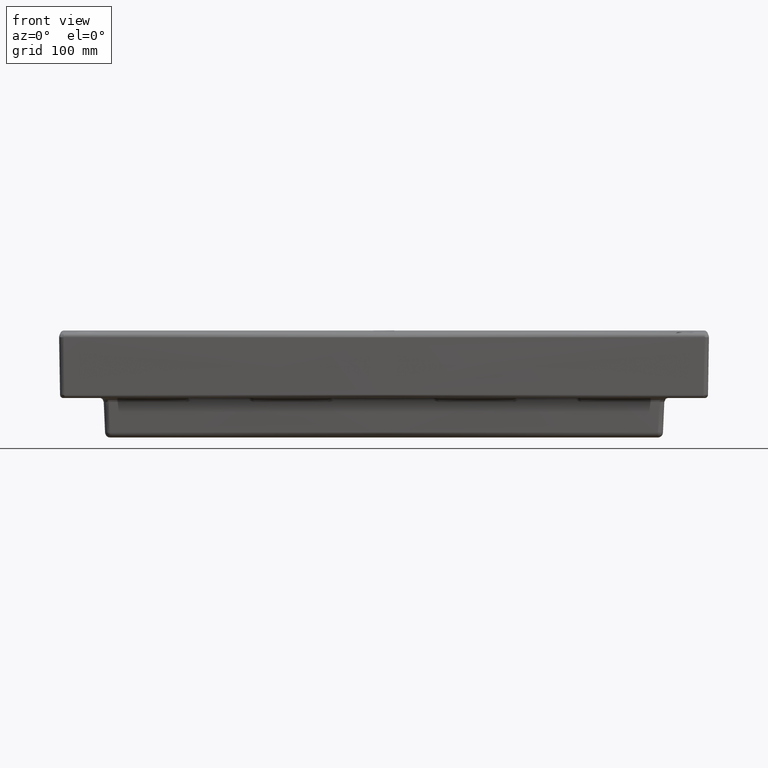
[diagram: clean part render]
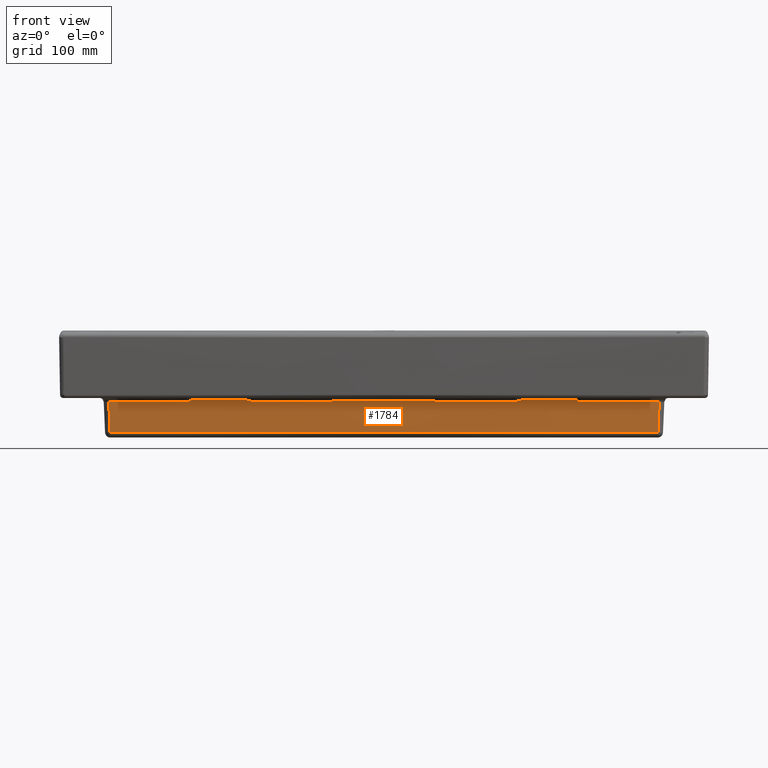
[diagram: same view with one face highlighted and labeled with its STEP entity id]
A machine part, front view. The second image highlights one B-rep face of the part: STEP entity #1784.
In plain terms, the highlighted face is a freeform B-spline surface patch.
Its self-contained STEP definition (entity closure, byte-faithful):
#741=B_SPLINE_SURFACE_WITH_KNOTS('',3,3,((#28799,#28800,#28801,#28802),
(#28803,#28804,#28805,#28806),(#28807,#28808,#28809,#28810),(#28811,#28812,
#28813,#28814)),.UNSPECIFIED.,.F.,.F.,.F.,(4,4),(4,4),(0.,1.),(0.,1.),
 .UNSPECIFIED.);
#817=FACE_OUTER_BOUND('',#2609,.T.);
#1334=B_SPLINE_CURVE_WITH_KNOTS('',3,(#28588,#28589,#28590,#28591,#28592,
#28593,#28594,#28595),.UNSPECIFIED.,.F.,.F.,(4,2,2,4),(0.,0.25,0.499999999999999,
1.),.UNSPECIFIED.);
#1335=B_SPLINE_CURVE_WITH_KNOTS('',3,(#28598,#28599,#28600,#28601,#28602,
#28603,#28604,#28605,#28606,#28607),.UNSPECIFIED.,.F.,.F.,(4,3,3,4),(0.,
0.117651243778816,0.58825746780924,1.),.UNSPECIFIED.);
#1336=B_SPLINE_CURVE_WITH_KNOTS('',3,(#28609,#28610,#28611,#28612,#28613,
#28614,#28615,#28616,#28617,#28618),.UNSPECIFIED.,.F.,.F.,(4,3,3,4),(0.,
0.19676708628781,0.535640576906987,1.),.UNSPECIFIED.);
#1337=B_SPLINE_CURVE_WITH_KNOTS('',3,(#28620,#28621,#28622,#28623),
 .UNSPECIFIED.,.F.,.F.,(4,4),(0.,1.),.UNSPECIFIED.);
#1338=B_SPLINE_CURVE_WITH_KNOTS('',3,(#28625,#28626,#28627,#28628,#28629,
#28630,#28631,#28632,#28633,#28634),.UNSPECIFIED.,.F.,.F.,(4,3,3,4),(0.,
0.176450270213736,0.515323760833533,1.),.UNSPECIFIED.);
#1339=B_SPLINE_CURVE_WITH_KNOTS('',3,(#28636,#28637,#28638,#28639,#28640,
#28641,#28642,#28643,#28644,#28645),.UNSPECIFIED.,.F.,.F.,(4,3,3,4),(0.,
0.117651243772488,0.58825746794212,1.),.UNSPECIFIED.);
#1340=B_SPLINE_CURVE_WITH_KNOTS('',3,(#28647,#28648,#28649,#28650,#28651,
#28652,#28653,#28654),.UNSPECIFIED.,.F.,.F.,(4,2,2,4),(0.,0.5,0.75,1.),
 .UNSPECIFIED.);
#1341=B_SPLINE_CURVE_WITH_KNOTS('',3,(#28656,#28657,#28658,#28659,#28660,
#28661),.UNSPECIFIED.,.F.,.F.,(4,2,4),(0.,0.5,1.),.UNSPECIFIED.);
#1342=B_SPLINE_CURVE_WITH_KNOTS('',3,(#28663,#28664,#28665,#28666,#28667,
#28668,#28669),.UNSPECIFIED.,.F.,.F.,(4,3,4),(0.,0.246708450632507,1.),
 .UNSPECIFIED.);
#1343=B_SPLINE_CURVE_WITH_KNOTS('',3,(#28671,#28672,#28673,#28674),
 .UNSPECIFIED.,.F.,.F.,(4,4),(0.,1.),.UNSPECIFIED.);
#1344=B_SPLINE_CURVE_WITH_KNOTS('',3,(#28676,#28677,#28678,#28679,#28680,
#28681,#28682,#28683),.UNSPECIFIED.,.F.,.F.,(4,2,2,4),(0.,0.250000000000002,
0.500000000000004,1.),.UNSPECIFIED.);
#1345=B_SPLINE_CURVE_WITH_KNOTS('',3,(#28685,#28686,#28687,#28688,#28689,
#28690,#28691,#28692,#28693,#28694),.UNSPECIFIED.,.F.,.F.,(4,3,3,4),(0.,
0.123832084792483,0.619161738071717,1.),.UNSPECIFIED.);
#1346=B_SPLINE_CURVE_WITH_KNOTS('',3,(#28696,#28697,#28698,#28699,#28700,
#28701,#28702,#28703),.UNSPECIFIED.,.F.,.F.,(4,2,2,4),(0.,0.5,0.75,1.),
 .UNSPECIFIED.);
#1347=B_SPLINE_CURVE_WITH_KNOTS('',3,(#28705,#28706,#28707,#28708),
 .UNSPECIFIED.,.F.,.F.,(4,4),(0.,1.),.UNSPECIFIED.);
#1348=B_SPLINE_CURVE_WITH_KNOTS('',3,(#28710,#28711,#28712,#28713,#28714,
#28715,#28716),.UNSPECIFIED.,.F.,.F.,(4,3,4),(0.,0.529617607773983,1.),
 .UNSPECIFIED.);
#1349=B_SPLINE_CURVE_WITH_KNOTS('',3,(#28718,#28719,#28720,#28721,#28722,
#28723,#28724),.UNSPECIFIED.,.F.,.F.,(4,3,4),(0.,0.640132789636948,1.),
 .UNSPECIFIED.);
#1350=B_SPLINE_CURVE_WITH_KNOTS('',3,(#28726,#28727,#28728,#28729,#28730,
#28731,#28732),.UNSPECIFIED.,.F.,.F.,(4,3,4),(0.,0.359679566338201,1.),
 .UNSPECIFIED.);
#1351=B_SPLINE_CURVE_WITH_KNOTS('',3,(#28734,#28735,#28736,#28737,#28738,
#28739,#28740),.UNSPECIFIED.,.F.,.F.,(4,3,4),(0.,0.529617610388831,1.),
 .UNSPECIFIED.);
#1352=B_SPLINE_CURVE_WITH_KNOTS('',3,(#28742,#28743,#28744,#28745),
 .UNSPECIFIED.,.F.,.F.,(4,4),(0.,1.),.UNSPECIFIED.);
#1353=B_SPLINE_CURVE_WITH_KNOTS('',3,(#28747,#28748,#28749,#28750,#28751,
#28752,#28753,#28754),.UNSPECIFIED.,.F.,.F.,(4,2,2,4),(0.,0.249999999999999,
0.499999999999998,1.),.UNSPECIFIED.);
#1354=B_SPLINE_CURVE_WITH_KNOTS('',3,(#28756,#28757,#28758,#28759,#28760,
#28761,#28762,#28763,#28764,#28765),.UNSPECIFIED.,.F.,.F.,(4,3,3,4),(0.,
0.12383208479835,0.619161738041473,1.),.UNSPECIFIED.);
#1355=B_SPLINE_CURVE_WITH_KNOTS('',3,(#28767,#28768,#28769,#28770,#28771,
#28772,#28773,#28774),.UNSPECIFIED.,.F.,.F.,(4,2,2,4),(0.,0.500000000000004,
0.750000000000002,1.),.UNSPECIFIED.);
#1356=B_SPLINE_CURVE_WITH_KNOTS('',3,(#28776,#28777,#28778,#28779,#28780,
#28781,#28782),.UNSPECIFIED.,.F.,.F.,(4,3,4),(0.,0.840031151232951,1.),
 .UNSPECIFIED.);
#1357=B_SPLINE_CURVE_WITH_KNOTS('',3,(#28784,#28785,#28786,#28787,#28788,
#28789,#28790),.UNSPECIFIED.,.F.,.F.,(4,3,4),(0.,0.256019087209822,1.),
 .UNSPECIFIED.);
#1358=B_SPLINE_CURVE_WITH_KNOTS('',3,(#28792,#28793,#28794,#28795,#28796,
#28797,#28798),.UNSPECIFIED.,.F.,.F.,(4,3,4),(0.,0.669983905232446,1.),
 .UNSPECIFIED.);
#1784=ADVANCED_FACE('',(#817),#741,.F.);
#2609=EDGE_LOOP('',(#3285,#3286,#3287,#3288,#3289,#3290,#3291,#3292,#3293,
#3294,#3295,#3296,#3297,#3298,#3299,#3300,#3301,#3302,#3303,#3304,#3305,
#3306,#3307,#3308,#3309));
#3285=ORIENTED_EDGE('',*,*,#5853,.T.);
#3286=ORIENTED_EDGE('',*,*,#5854,.T.);
#3287=ORIENTED_EDGE('',*,*,#5855,.T.);
#3288=ORIENTED_EDGE('',*,*,#5856,.T.);
#3289=ORIENTED_EDGE('',*,*,#5857,.T.);
#3290=ORIENTED_EDGE('',*,*,#5858,.T.);
#3291=ORIENTED_EDGE('',*,*,#5859,.T.);
#3292=ORIENTED_EDGE('',*,*,#5860,.T.);
#3293=ORIENTED_EDGE('',*,*,#5861,.T.);
#3294=ORIENTED_EDGE('',*,*,#5862,.T.);
#3295=ORIENTED_EDGE('',*,*,#5863,.T.);
#3296=ORIENTED_EDGE('',*,*,#5864,.T.);
#3297=ORIENTED_EDGE('',*,*,#5865,.T.);
#3298=ORIENTED_EDGE('',*,*,#5866,.T.);
#3299=ORIENTED_EDGE('',*,*,#5867,.T.);
#3300=ORIENTED_EDGE('',*,*,#5868,.T.);
#3301=ORIENTED_EDGE('',*,*,#5869,.T.);
#3302=ORIENTED_EDGE('',*,*,#5870,.T.);
#3303=ORIENTED_EDGE('',*,*,#5871,.T.);
#3304=ORIENTED_EDGE('',*,*,#5872,.T.);
#3305=ORIENTED_EDGE('',*,*,#5873,.T.);
#3306=ORIENTED_EDGE('',*,*,#5874,.T.);
#3307=ORIENTED_EDGE('',*,*,#5875,.T.);
#3308=ORIENTED_EDGE('',*,*,#5876,.T.);
#3309=ORIENTED_EDGE('',*,*,#5877,.T.);
#5239=VERTEX_POINT('',#28596);
#5240=VERTEX_POINT('',#28597);
#5241=VERTEX_POINT('',#28608);
#5242=VERTEX_POINT('',#28619);
#5243=VERTEX_POINT('',#28624);
#5244=VERTEX_POINT('',#28635);
#5245=VERTEX_POINT('',#28646);
#5246=VERTEX_POINT('',#28655);
#5247=VERTEX_POINT('',#28662);
#5248=VERTEX_POINT('',#28670);
#5249=VERTEX_POINT('',#28675);
#5250=VERTEX_POINT('',#28684);
#5251=VERTEX_POINT('',#28695);
#5252=VERTEX_POINT('',#28704);
#5253=VERTEX_POINT('',#28709);
#5254=VERTEX_POINT('',#28717);
#5255=VERTEX_POINT('',#28725);
#5256=VERTEX_POINT('',#28733);
#5257=VERTEX_POINT('',#28741);
#5258=VERTEX_POINT('',#28746);
#5259=VERTEX_POINT('',#28755);
#5260=VERTEX_POINT('',#28766);
#5261=VERTEX_POINT('',#28775);
#5262=VERTEX_POINT('',#28783);
#5263=VERTEX_POINT('',#28791);
#5853=EDGE_CURVE('',#5239,#5240,#1334,.T.);
#5854=EDGE_CURVE('',#5240,#5241,#1335,.T.);
#5855=EDGE_CURVE('',#5241,#5242,#1336,.T.);
#5856=EDGE_CURVE('',#5242,#5243,#1337,.T.);
#5857=EDGE_CURVE('',#5243,#5244,#1338,.T.);
#5858=EDGE_CURVE('',#5244,#5245,#1339,.T.);
#5859=EDGE_CURVE('',#5245,#5246,#1340,.T.);
#5860=EDGE_CURVE('',#5246,#5247,#1341,.T.);
#5861=EDGE_CURVE('',#5247,#5248,#1342,.T.);
#5862=EDGE_CURVE('',#5248,#5249,#1343,.T.);
#5863=EDGE_CURVE('',#5249,#5250,#1344,.T.);
#5864=EDGE_CURVE('',#5250,#5251,#1345,.T.);
#5865=EDGE_CURVE('',#5251,#5252,#1346,.T.);
#5866=EDGE_CURVE('',#5252,#5253,#1347,.T.);
#5867=EDGE_CURVE('',#5253,#5254,#1348,.T.);
#5868=EDGE_CURVE('',#5254,#5255,#1349,.T.);
#5869=EDGE_CURVE('',#5255,#5256,#1350,.T.);
#5870=EDGE_CURVE('',#5256,#5257,#1351,.T.);
#5871=EDGE_CURVE('',#5257,#5258,#1352,.T.);
#5872=EDGE_CURVE('',#5258,#5259,#1353,.T.);
#5873=EDGE_CURVE('',#5259,#5260,#1354,.T.);
#5874=EDGE_CURVE('',#5260,#5261,#1355,.T.);
#5875=EDGE_CURVE('',#5261,#5262,#1356,.T.);
#5876=EDGE_CURVE('',#5262,#5263,#1357,.T.);
#5877=EDGE_CURVE('',#5263,#5239,#1358,.T.);
#28588=CARTESIAN_POINT('',(-296.672856721617,-429.613503322951,-119.061244166966));
#28589=CARTESIAN_POINT('',(-297.390163376989,-429.580100555399,-119.456104124796));
#28590=CARTESIAN_POINT('',(-298.054761526986,-429.543189136452,-119.935419290818));
#28591=CARTESIAN_POINT('',(-299.453465356129,-429.473883993891,-120.78205812513));
#28592=CARTESIAN_POINT('',(-300.173576327274,-429.441021568146,-121.163120406945));
#28593=CARTESIAN_POINT('',(-302.433120835536,-429.351029214019,-122.104355645544));
#28594=CARTESIAN_POINT('',(-304.028863219171,-429.303917669622,-122.450057652582));
#28595=CARTESIAN_POINT('',(-305.669884368878,-429.273776970956,-122.449815518672));
#28596=CARTESIAN_POINT('',(-296.672856721617,-429.613503322951,-119.061244166966));
#28597=CARTESIAN_POINT('',(-305.669884368878,-429.273776970956,-122.449815518672));
#28598=CARTESIAN_POINT('',(-305.669884368878,-429.273776970956,-122.449815518672));
#28599=CARTESIAN_POINT('',(-310.335764451016,-429.188078571766,-122.449127064542));
#28600=CARTESIAN_POINT('',(-315.001608899582,-429.100417737833,-122.448422845636));
#28601=CARTESIAN_POINT('',(-319.667415237679,-429.010794484833,-122.447702862128));
#28602=CARTESIAN_POINT('',(-338.330665354764,-428.652300997143,-122.444822924275));
#28603=CARTESIAN_POINT('',(-356.993338722978,-428.262408031016,-122.441690746548));
#28604=CARTESIAN_POINT('',(-375.655276804809,-427.841116702662,-122.438306341453));
#28605=CARTESIAN_POINT('',(-391.98297456758,-427.472520608876,-122.435345258673));
#28606=CARTESIAN_POINT('',(-408.310147392865,-427.079888709386,-122.432191092965));
#28607=CARTESIAN_POINT('',(-424.636689084784,-426.66322186548,-122.428843853973));
#28608=CARTESIAN_POINT('',(-424.636689084784,-426.66322186548,-122.428843853973));
#28609=CARTESIAN_POINT('',(-424.636689084784,-426.66322186548,-122.428843853973));
#28610=CARTESIAN_POINT('',(-424.50156145699,-426.506131972323,-125.518706704717));
#28611=CARTESIAN_POINT('',(-424.366433800523,-426.349040019635,-128.608569449501));
#28612=CARTESIAN_POINT('',(-424.231306117439,-426.191945953044,-131.698432085646));
#28613=CARTESIAN_POINT('',(-423.998588387507,-425.921397581842,-137.019812590882));
#28614=CARTESIAN_POINT('',(-423.765870578622,-425.650842940811,-142.341192773899));
#28615=CARTESIAN_POINT('',(-423.533152701327,-425.380281752271,-147.662572621019));
#28616=CARTESIAN_POINT('',(-423.214258653149,-425.009530894209,-154.954476367599));
#28617=CARTESIAN_POINT('',(-422.895364476504,-424.638767741679,-162.24637948347));
#28618=CARTESIAN_POINT('',(-422.576470198717,-424.267991580399,-169.538281933444));
#28619=CARTESIAN_POINT('',(-422.576470198717,-424.267991580399,-169.538281933444));
#28620=CARTESIAN_POINT('',(-422.576470198717,-424.267991580399,-169.538281933444));
#28621=CARTESIAN_POINT('',(-140.914549940891,-431.392558969336,-169.605422258055));
#28622=CARTESIAN_POINT('',(140.914529720339,-431.392558962638,-169.605422239955));
#28623=CARTESIAN_POINT('',(422.576450478011,-424.267991579878,-169.538281932917));
#28624=CARTESIAN_POINT('',(422.57645047801,-424.267991579878,-169.538281932916));
#28625=CARTESIAN_POINT('',(422.57645047801,-424.267991579878,-169.538281932916));
#28626=CARTESIAN_POINT('',(422.697625969682,-424.408881482214,-166.767458097562));
#28627=CARTESIAN_POINT('',(422.818801446784,-424.549769506254,-163.996634166062));
#28628=CARTESIAN_POINT('',(422.939976907813,-424.690655691184,-161.225810140348));
#28629=CARTESIAN_POINT('',(423.172694893489,-424.961228205521,-155.904430873831));
#28630=CARTESIAN_POINT('',(423.405412819879,-425.231793936597,-150.583051259814));
#28631=CARTESIAN_POINT('',(423.638130676382,-425.502353162032,-145.261671311973));
#28632=CARTESIAN_POINT('',(423.970977058879,-425.889322433708,-137.650729495384));
#28633=CARTESIAN_POINT('',(424.303823298406,-426.276278397205,-130.039786995894));
#28634=CARTESIAN_POINT('',(424.636669364182,-426.663221865023,-122.428843853532));
#28635=CARTESIAN_POINT('',(424.636669364182,-426.663221865023,-122.428843853532));
#28636=CARTESIAN_POINT('',(424.636669364182,-426.663221865023,-122.428843853532));
#28637=CARTESIAN_POINT('',(419.971521370162,-426.782280299026,-122.429800293738));
#28638=CARTESIAN_POINT('',(415.30632287743,-426.899376318208,-122.430740969835));
#28639=CARTESIAN_POINT('',(410.641076363674,-427.014509901588,-122.431665881588));
#28640=CARTESIAN_POINT('',(391.980065543686,-427.475044846283,-122.435365533507));
#28641=CARTESIAN_POINT('',(373.318253365956,-427.904181493897,-122.438812961297));
#28642=CARTESIAN_POINT('',(354.655798384908,-428.301918615078,-122.442008151153));
#28643=CARTESIAN_POINT('',(338.327648383436,-428.649906668224,-122.444803685787));
#28644=CARTESIAN_POINT('',(321.998968413223,-428.973859688429,-122.447406142771));
#28645=CARTESIAN_POINT('',(305.669864647483,-429.273776965962,-122.449815514129));
#28646=CARTESIAN_POINT('',(305.669864647483,-429.273776965962,-122.449815514129));
#28647=CARTESIAN_POINT('',(305.669864647483,-429.273776965962,-122.449815514129));
#28648=CARTESIAN_POINT('',(304.035077006512,-429.303803173503,-122.450056728257));
#28649=CARTESIAN_POINT('',(302.445521823821,-429.350657969578,-122.107134600862));
#28650=CARTESIAN_POINT('',(300.193103591252,-429.440182382077,-121.172439968415));
#28651=CARTESIAN_POINT('',(299.475142998335,-429.47286925525,-120.794015979646));
#28652=CARTESIAN_POINT('',(298.080876903318,-429.541835822415,-119.952374963623));
#28653=CARTESIAN_POINT('',(297.417933100868,-429.578560362099,-119.476090921735));
#28654=CARTESIAN_POINT('',(296.705484526785,-429.611977475313,-119.079321581975));
#28655=CARTESIAN_POINT('',(296.705484526785,-429.611977475313,-119.079321581975));
#28656=CARTESIAN_POINT('',(296.705484526785,-429.611977475313,-119.079321581974));
#28657=CARTESIAN_POINT('',(296.4904786207,-429.620122586057,-118.996749469803));
#28658=CARTESIAN_POINT('',(296.191561725284,-429.628657529033,-118.935278966264));
#28659=CARTESIAN_POINT('',(295.688501002126,-429.641021692102,-118.869896063755));
#28660=CARTESIAN_POINT('',(295.426995569535,-429.646460696073,-118.85473547138));
#28661=CARTESIAN_POINT('',(295.155519085159,-429.651155080604,-118.857105726192));
#28662=CARTESIAN_POINT('',(295.155519085159,-429.651155080604,-118.857105726192));
#28663=CARTESIAN_POINT('',(295.155519085971,-429.651155075277,-118.857105827977));
#28664=CARTESIAN_POINT('',(288.093176624121,-429.773225453204,-118.919763143811));
#28665=CARTESIAN_POINT('',(281.030731896931,-429.890943674694,-118.979575721314));
#28666=CARTESIAN_POINT('',(273.968198478708,-430.00429333932,-119.036862149482));
#28667=CARTESIAN_POINT('',(252.403732929009,-430.350390807914,-119.211778306836));
#28668=CARTESIAN_POINT('',(230.83837832768,-430.655741663417,-119.363518858931));
#28669=CARTESIAN_POINT('',(209.272455645447,-430.920131519285,-119.496298496216));
#28670=CARTESIAN_POINT('',(209.272455645447,-430.920131519285,-119.496298496216));
#28671=CARTESIAN_POINT('',(209.272455645447,-430.920131519285,-119.496298496216));
#28672=CARTESIAN_POINT('',(208.839891541647,-430.925434587591,-119.498961758329));
#28673=CARTESIAN_POINT('',(208.396313714095,-430.929273891219,-119.53191917238));
#28674=CARTESIAN_POINT('',(207.986333687755,-430.927180134085,-119.669973196508));
#28675=CARTESIAN_POINT('',(207.986333687755,-430.927180134084,-119.669973196508));
#28676=CARTESIAN_POINT('',(207.986333687755,-430.927180134085,-119.669973196508));
#28677=CARTESIAN_POINT('',(207.24385950368,-430.923388338095,-119.919989154205));
#28678=CARTESIAN_POINT('',(206.541066435765,-430.912388396959,-120.297419432439));
#28679=CARTESIAN_POINT('',(205.116977518729,-430.893635948379,-120.992866894654));
#28680=CARTESIAN_POINT('',(204.398908331473,-430.885300103526,-121.321244784395));
#28681=CARTESIAN_POINT('',(202.191484823098,-430.869734817306,-122.135501469253));
#28682=CARTESIAN_POINT('',(200.652697089159,-430.871267623732,-122.462648922119));
#28683=CARTESIAN_POINT('',(199.012075363175,-430.890883973881,-122.462806510189));
#28684=CARTESIAN_POINT('',(199.012075363175,-430.890883973881,-122.462806510189));
#28685=CARTESIAN_POINT('',(199.012075363175,-430.890883973881,-122.462806510189));
#28686=CARTESIAN_POINT('',(194.345741846734,-430.946677720068,-122.463254729594));
#28687=CARTESIAN_POINT('',(189.679384452031,-431.00050904307,-122.463687184015));
#28688=CARTESIAN_POINT('',(185.013005655333,-431.052377933275,-122.464103873343));
#28689=CARTESIAN_POINT('',(166.347465708696,-431.259853769312,-122.465770632869));
#28690=CARTESIAN_POINT('',(147.681550316325,-431.435930908571,-122.467185152708));
#28691=CARTESIAN_POINT('',(129.015417951986,-431.580608848161,-122.468347427194));
#28692=CARTESIAN_POINT('',(114.66380085805,-431.691845731647,-122.469241051971));
#28693=CARTESIAN_POINT('',(100.312027886207,-431.784521407477,-122.469985565369));
#28694=CARTESIAN_POINT('',(85.9601710597178,-431.858635719232,-122.470580965623));
#28695=CARTESIAN_POINT('',(85.9601710597178,-431.858635719232,-122.470580965623));
#28696=CARTESIAN_POINT('',(85.9601710597178,-431.858635719232,-122.470580965622));
#28697=CARTESIAN_POINT('',(84.2971984204014,-431.867223463252,-122.470649955604));
#28698=CARTESIAN_POINT('',(82.7005090368483,-431.892525364746,-122.14044270821));
#28699=CARTESIAN_POINT('',(80.3647462000549,-431.945340472426,-121.349788600733));
#28700=CARTESIAN_POINT('',(79.5981870697126,-431.965502381735,-121.035290075915));
#28701=CARTESIAN_POINT('',(78.05745527425,-432.003991206655,-120.440002249126));
#28702=CARTESIAN_POINT('',(77.2821188698262,-432.0224102045,-120.157600368926));
#28703=CARTESIAN_POINT('',(76.4445782618079,-432.031058954819,-120.065984795078));
#28704=CARTESIAN_POINT('',(76.4445782618079,-432.031058954819,-120.065984795078));
#28705=CARTESIAN_POINT('',(76.4445782618079,-432.031058954819,-120.065984795078));
#28706=CARTESIAN_POINT('',(76.2539480277645,-432.033027472263,-120.045132435064));
#28707=CARTESIAN_POINT('',(76.0618057959371,-432.034398087608,-120.035761670809));
#28708=CARTESIAN_POINT('',(75.8700308382338,-432.035247837159,-120.036236680447));
#28709=CARTESIAN_POINT('',(75.8700308382338,-432.035247837159,-120.036236680447));
#28710=CARTESIAN_POINT('',(75.8700308382338,-432.035247837159,-120.036236680447));
#28711=CARTESIAN_POINT('',(68.539870412453,-432.067727575937,-120.054392840624));
#28712=CARTESIAN_POINT('',(61.209681989726,-432.095471950837,-120.070455611619));
#28713=CARTESIAN_POINT('',(53.8794765357815,-432.118481258987,-120.084420638213));
#28714=CARTESIAN_POINT('',(47.3691194257465,-432.138917086312,-120.096823743522));
#28715=CARTESIAN_POINT('',(40.8587461561895,-432.155617816131,-120.107572030796));
#28716=CARTESIAN_POINT('',(34.3483644148492,-432.16858366238,-120.116662085693));
#28717=CARTESIAN_POINT('',(34.3483644148492,-432.16858366238,-120.116662085693));
#28718=CARTESIAN_POINT('',(34.3483644148492,-432.16858366238,-120.116662085693));
#28719=CARTESIAN_POINT('',(27.018131128686,-432.183182295998,-120.126896850048));
#28720=CARTESIAN_POINT('',(19.687883582177,-432.193048764795,-120.134979692243));
#28721=CARTESIAN_POINT('',(12.3576328474377,-432.1981806627,-120.14095711303));
#28722=CARTESIAN_POINT('',(8.23674202888767,-432.201065692384,-120.14431747536));
#28723=CARTESIAN_POINT('',(4.11584929392623,-432.202454544326,-120.147009686833));
#28724=CARTESIAN_POINT('',(-0.00504340032159156,-432.20234660336,-120.149045536833));
#28725=CARTESIAN_POINT('',(-0.00504340032159156,-432.20234660336,-120.149045536833));
#28726=CARTESIAN_POINT('',(-0.00504340032159156,-432.20234660336,-120.149045536833));
#28727=CARTESIAN_POINT('',(-4.12258037230691,-432.202451900528,-120.14701257162));
#28728=CARTESIAN_POINT('',(-8.24011737817385,-432.201063343301,-120.144314739106));
#28729=CARTESIAN_POINT('',(-12.3576524753168,-432.198180663081,-120.140957113239));
#28730=CARTESIAN_POINT('',(-19.6879032100545,-432.193048765403,-120.134979692549));
#28731=CARTESIAN_POINT('',(-27.0181507565619,-432.18318229683,-120.12689685045));
#28732=CARTESIAN_POINT('',(-34.3483840427239,-432.168583663433,-120.116662086192));
#28733=CARTESIAN_POINT('',(-34.3483840427239,-432.168583663433,-120.116662086192));
#28734=CARTESIAN_POINT('',(-34.3483840427239,-432.168583663433,-120.116662086192));
#28735=CARTESIAN_POINT('',(-41.6786172816747,-432.153985030129,-120.106427321999));
#28736=CARTESIAN_POINT('',(-49.0088399852862,-432.134651617194,-120.094090385553));
#28737=CARTESIAN_POINT('',(-56.3390411809002,-432.110583118015,-120.079656152701));
#28738=CARTESIAN_POINT('',(-62.8493944416594,-432.089206565321,-120.066836319738));
#28739=CARTESIAN_POINT('',(-69.3597334616421,-432.064094874444,-120.052362161825));
#28740=CARTESIAN_POINT('',(-75.8700505585601,-432.035247838997,-120.036236681248));
#28741=CARTESIAN_POINT('',(-75.8700505585601,-432.035247838997,-120.036236681248));
#28742=CARTESIAN_POINT('',(-75.8700505585601,-432.035247838997,-120.036236681248));
#28743=CARTESIAN_POINT('',(-76.0618255164914,-432.034398089449,-120.035761671612));
#28744=CARTESIAN_POINT('',(-76.2539677485484,-432.033027474109,-120.045132435894));
#28745=CARTESIAN_POINT('',(-76.4445979828143,-432.031058956671,-120.065984795971));
#28746=CARTESIAN_POINT('',(-76.4445979828143,-432.031058956671,-120.065984795971));
#28747=CARTESIAN_POINT('',(-76.4445979828143,-432.031058956671,-120.065984795972));
#28748=CARTESIAN_POINT('',(-77.2816402516742,-432.022415352426,-120.157545858451));
#28749=CARTESIAN_POINT('',(-78.0569498401919,-432.004003628118,-120.439812210381));
#28750=CARTESIAN_POINT('',(-79.5976266272216,-431.965517575807,-121.035053068312));
#28751=CARTESIAN_POINT('',(-80.3640939676806,-431.945358056894,-121.349514560561));
#28752=CARTESIAN_POINT('',(-82.6984950864172,-431.892566580435,-122.139847385431));
#28753=CARTESIAN_POINT('',(-84.2952137994069,-431.867233816663,-122.470650041127));
#28754=CARTESIAN_POINT('',(-85.960190781281,-431.858635722083,-122.470580968037));
#28755=CARTESIAN_POINT('',(-85.960190781281,-431.858635722084,-122.470580968037));
#28756=CARTESIAN_POINT('',(-85.960190781281,-431.858635722084,-122.470580968037));
#28757=CARTESIAN_POINT('',(-90.6267956328522,-431.834536944555,-122.470387369674));
#28758=CARTESIAN_POINT('',(-95.2933907622634,-431.808475736245,-122.470178006078));
#28759=CARTESIAN_POINT('',(-99.9599736935415,-431.780452101804,-122.4699528773));
#28760=CARTESIAN_POINT('',(-118.626330178467,-431.668357415352,-122.469052360995));
#28761=CARTESIAN_POINT('',(-137.292524506091,-431.524863573586,-122.467899599031));
#28762=CARTESIAN_POINT('',(-155.95839820814,-431.349970986221,-122.466494595998));
#28763=CARTESIAN_POINT('',(-170.309816428624,-431.215503309809,-122.465414347281));
#28764=CARTESIAN_POINT('',(-184.661072729558,-431.062474221344,-122.464184985917));
#28765=CARTESIAN_POINT('',(-199.012095081671,-430.890883979225,-122.462806514804));
#28766=CARTESIAN_POINT('',(-199.012095081671,-430.890883979225,-122.462806514804));
#28767=CARTESIAN_POINT('',(-199.012095081671,-430.890883979225,-122.462806514804));
#28768=CARTESIAN_POINT('',(-200.606818270754,-430.871816422126,-122.462653335484));
#28769=CARTESIAN_POINT('',(-202.143442728715,-430.869548563996,-122.150264731436));
#28770=CARTESIAN_POINT('',(-204.382694332808,-430.885111357251,-121.328676034315));
#28771=CARTESIAN_POINT('',(-205.104332135879,-430.893478013264,-120.998873414617));
#28772=CARTESIAN_POINT('',(-206.531120327088,-430.912248474079,-120.302461837542));
#28773=CARTESIAN_POINT('',(-207.231171459349,-430.923323443632,-119.924268286904));
#28774=CARTESIAN_POINT('',(-207.986353408952,-430.927180137664,-119.66997319825));
#28775=CARTESIAN_POINT('',(-207.986353408952,-430.927180137664,-119.66997319825));
#28776=CARTESIAN_POINT('',(-207.986353408952,-430.927180137664,-119.66997319825));
#28777=CARTESIAN_POINT('',(-208.330802677051,-430.92893923087,-119.55398557803));
#28778=CARTESIAN_POINT('',(-208.70046503189,-430.926269970813,-119.516423084886));
#28779=CARTESIAN_POINT('',(-209.063587417678,-430.922498027153,-119.501276265825));
#28780=CARTESIAN_POINT('',(-209.13317670211,-430.921775166568,-119.49837350813));
#28781=CARTESIAN_POINT('',(-209.202828369286,-430.920985367937,-119.496727308971));
#28782=CARTESIAN_POINT('',(-209.272475365682,-430.920131522748,-119.496298498062));
#28783=CARTESIAN_POINT('',(-209.272475365682,-430.920131522748,-119.496298498062));
#28784=CARTESIAN_POINT('',(-209.272475365682,-430.920131522748,-119.496298498062));
#28785=CARTESIAN_POINT('',(-216.602039605288,-430.830273905181,-119.451170965389));
#28786=CARTESIAN_POINT('',(-223.931534031675,-430.735686990527,-119.403813593222));
#28787=CARTESIAN_POINT('',(-231.260946740015,-430.636376175225,-119.354119117201));
#28788=CARTESIAN_POINT('',(-252.559875558618,-430.347783613963,-119.209709305723));
#28789=CARTESIAN_POINT('',(-273.858184619521,-430.019273176372,-119.046056600186));
#28790=CARTESIAN_POINT('',(-295.155538806182,-429.651155078043,-118.857105829895));
#28791=CARTESIAN_POINT('',(-295.155538806182,-429.651155078043,-118.857105829895));
#28792=CARTESIAN_POINT('',(-295.155538806182,-429.651155078043,-118.857105829895));
#28793=CARTESIAN_POINT('',(-295.498111245286,-429.645233820701,-118.854066516858));
#28794=CARTESIAN_POINT('',(-295.842922871739,-429.637835090968,-118.878368045964));
#28795=CARTESIAN_POINT('',(-296.179861506121,-429.628622575002,-118.939912021756));
#28796=CARTESIAN_POINT('',(-296.346356160442,-429.624070307898,-118.97032332497));
#28797=CARTESIAN_POINT('',(-296.524657255905,-429.620404516838,-118.979663946925));
#28798=CARTESIAN_POINT('',(-296.672856721617,-429.613503322951,-119.061244166966));
#28799=CARTESIAN_POINT('',(430.032542710564,-423.680313212537,-177.18821369021));
#28800=CARTESIAN_POINT('',(430.927635461569,-424.721219975499,-156.702999447334));
#28801=CARTESIAN_POINT('',(431.822728402341,-425.762023299346,-136.217779956779));
#28802=CARTESIAN_POINT('',(432.717821502787,-426.802739568723,-115.732556050588));
#28803=CARTESIAN_POINT('',(143.407230531225,-431.053936493569,-177.252562325722));
#28804=CARTESIAN_POINT('',(143.706325133679,-432.138406333587,-156.767376532893));
#28805=CARTESIAN_POINT('',(144.00541979939,-433.22291065331,-136.282192489291));
#28806=CARTESIAN_POINT('',(144.304514518324,-434.30744399119,-115.797009917567));
#28807=CARTESIAN_POINT('',(-143.407578980035,-431.053928037043,-177.252562251923));
#28808=CARTESIAN_POINT('',(-143.706453746472,-432.138403564853,-156.767376508337));
#28809=CARTESIAN_POINT('',(-144.005328576165,-433.222913572369,-136.282192513978));
#28810=CARTESIAN_POINT('',(-144.304203459082,-434.307452598041,-115.797009991497));
#28811=CARTESIAN_POINT('',(-430.032562430709,-423.680313212537,-177.18821369021));
#28812=CARTESIAN_POINT('',(-430.927655181715,-424.721219975499,-156.702999447334));
#28813=CARTESIAN_POINT('',(-431.82274812249,-425.762023299345,-136.217779956779));
#28814=CARTESIAN_POINT('',(-432.717841222936,-426.802739568721,-115.732556050588));